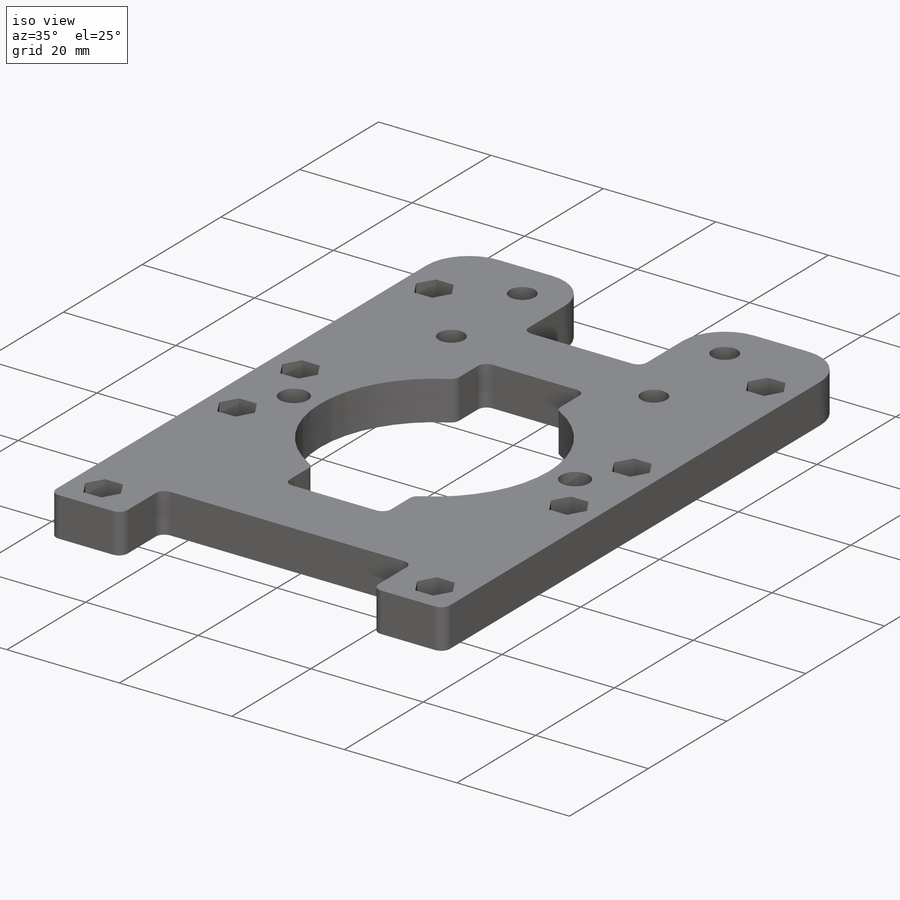
[diagram: iso view]
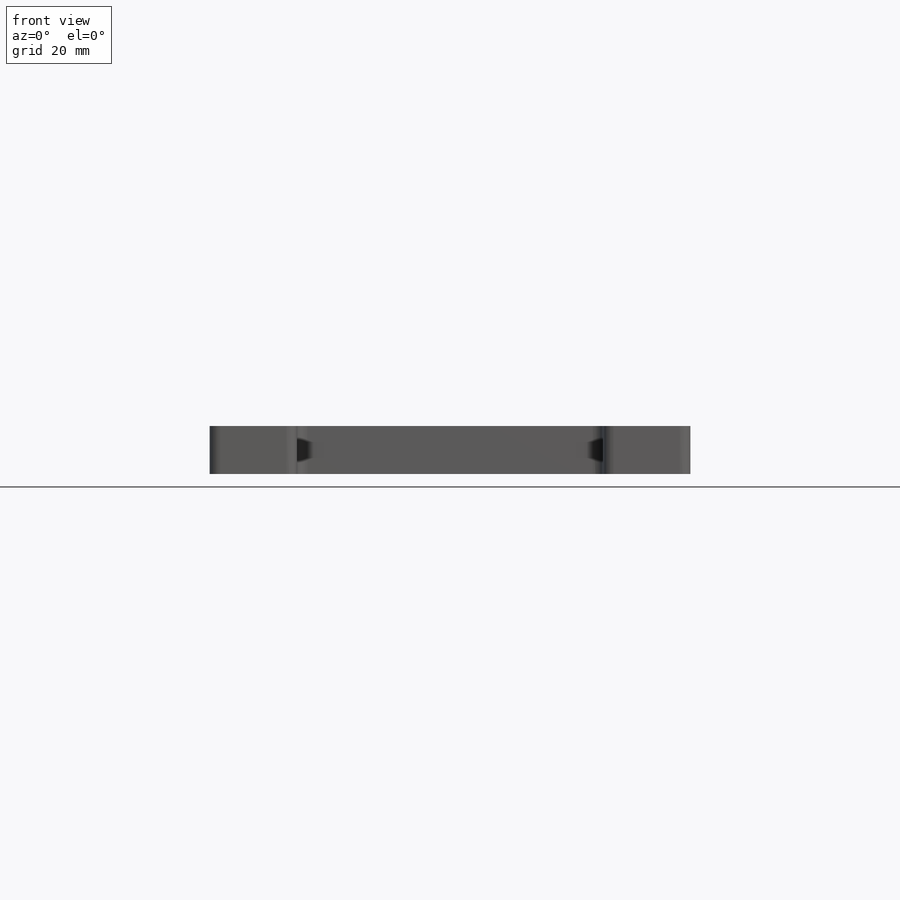
[diagram: front view]
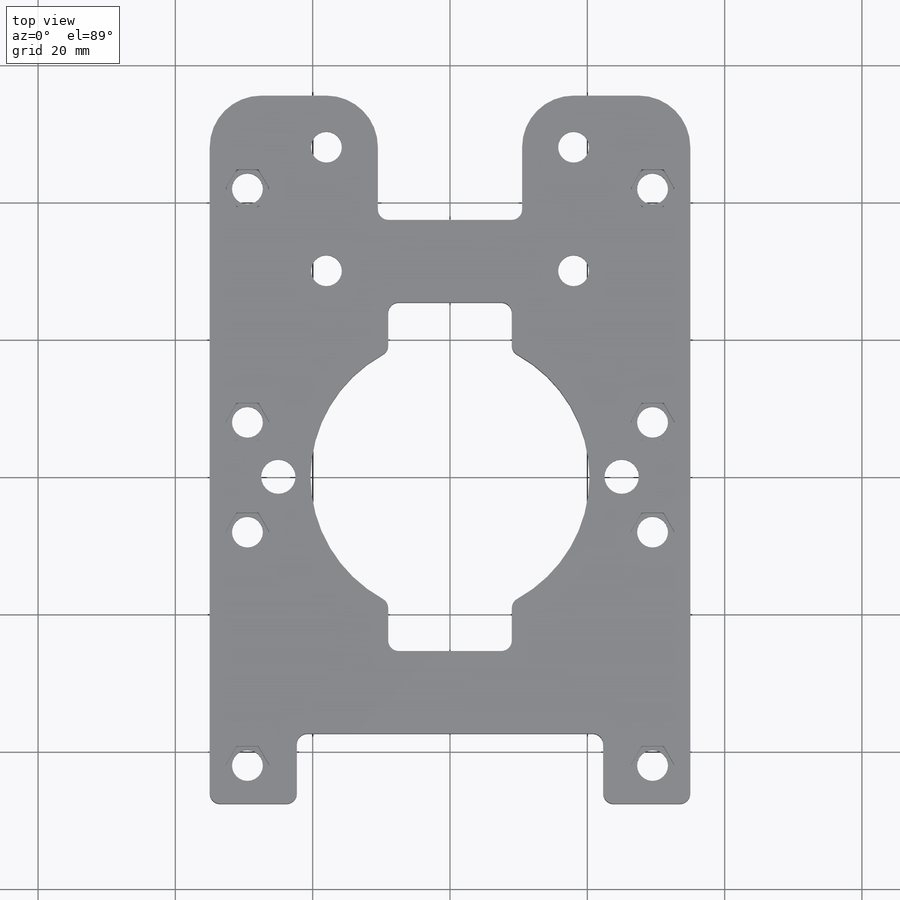
[diagram: top view]
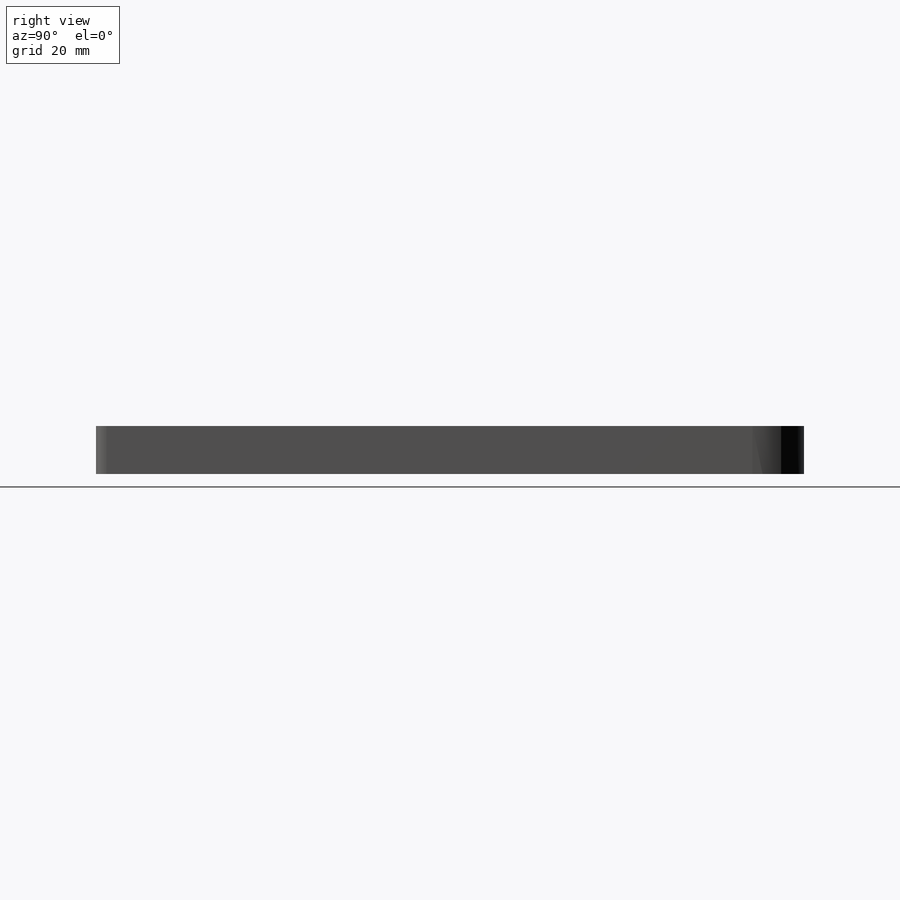
[diagram: right view]
SOLIDWORKS PART (.sldprt)
format: sldprt  version: not decoded by parser v0  size: 722,944 bytes
history: native  units: mm
features: sketch x4, cut_extrude x3, material x1, extrude x1 (+11 scaffold rows collapsed)
feature tree (20):
  scaffold x11  (default folders/planes/origin — collapsed)
  material  "Material <not specified>"
  sketch  "Sketch1"  dims[c1.D6=40.64mm c1.D7=7.5mm c1.D8=4.5mm c1.D14=~5.48212mm c1.D20=5.0mm c1.D3=7.5mm c1.D25=1.524mm c1.D26=1.524mm c1.D27=1.524mm c1.D28=1.524mm c1.D1=70.0mm c1.D2=47.625mm c2.D3=41.91mm c2.D4=48.0mm c2.D5=36.0mm c2.D9=18.0mm c2.D10=24.0mm c2.D11=24.0mm c2.D12=5.5mm c2.D13=5.5mm c2.D14=4.0mm c2.D15=4.0mm c2.D16=18.0mm c2.D17=50.8mm c3.D15=13.0mm c3.D14=13.0mm c3.D18=25.0mm c3.D19=25.0mm c3.D21=12.0mm c3.D22=12.0mm c3.D23=12.7mm c3.D24=12.7mm c3.D10=25.0mm c3.D11=50.0mm c4.D14=34.0mm]
  extrude  "Boss-Extrude1"  Depth=7mm
  sketch  "Sketch2"  dims[D1=5.5mm]
  cut_extrude  "Cut-Extrude1"  Depth=4mm
  sketch  "Sketch3"  dims[D1=5.5mm]
  cut_extrude  "Cut-Extrude2"  Depth=4mm
  sketch  "Sketch4"  dims[D1=7.5mm]
  cut_extrude  "Cut-Extrude3"  Depth=4mm
decode coverage: 8 of 8 modeling features carry decoded parameters
note: ~ marks probable driven/reference dimensions
note: suppression state not decoded; provenance and decode notes live in map.json
